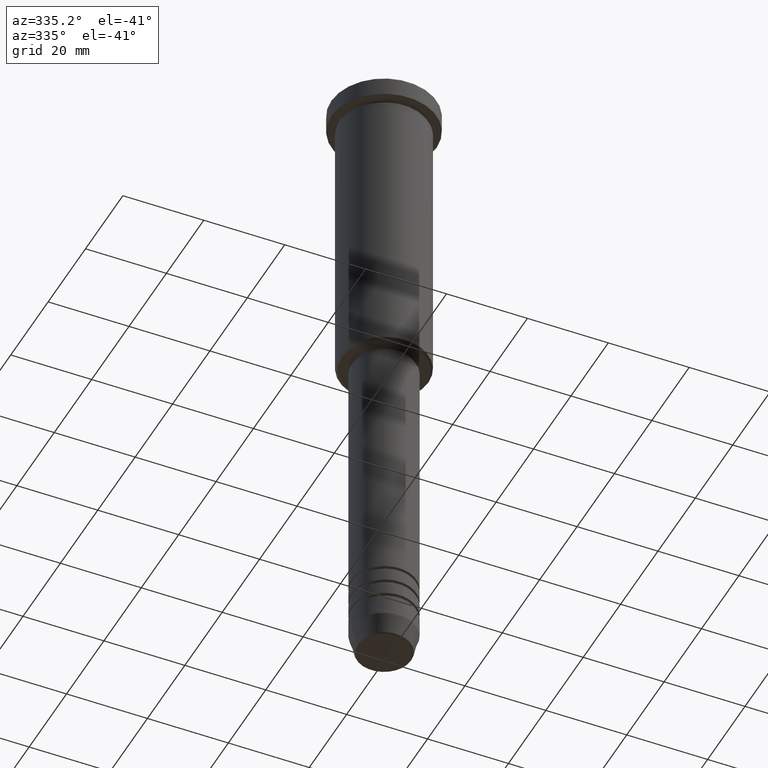
[diagram: clean part render]
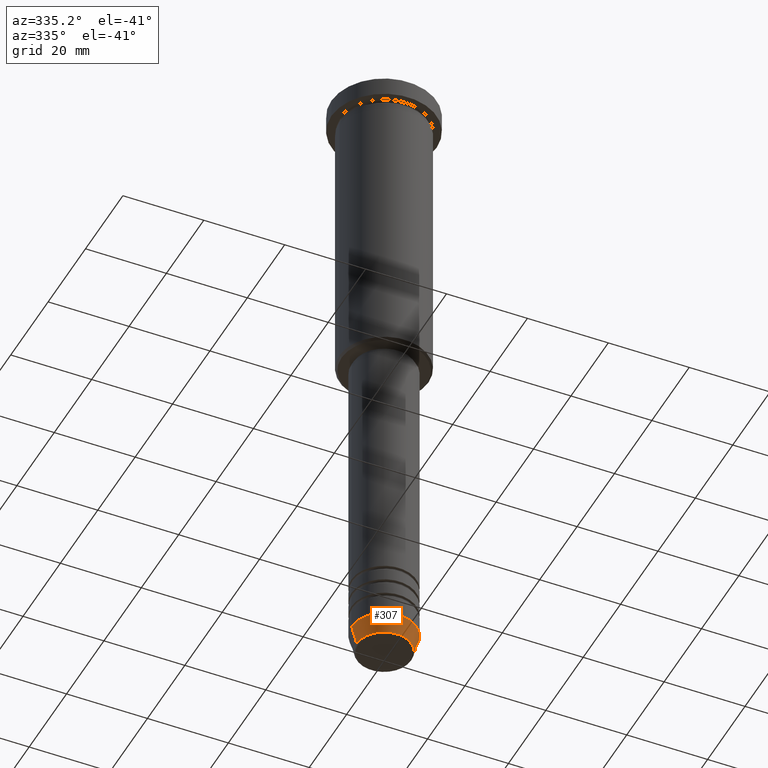
[diagram: same view with one face highlighted and labeled with its STEP entity id]
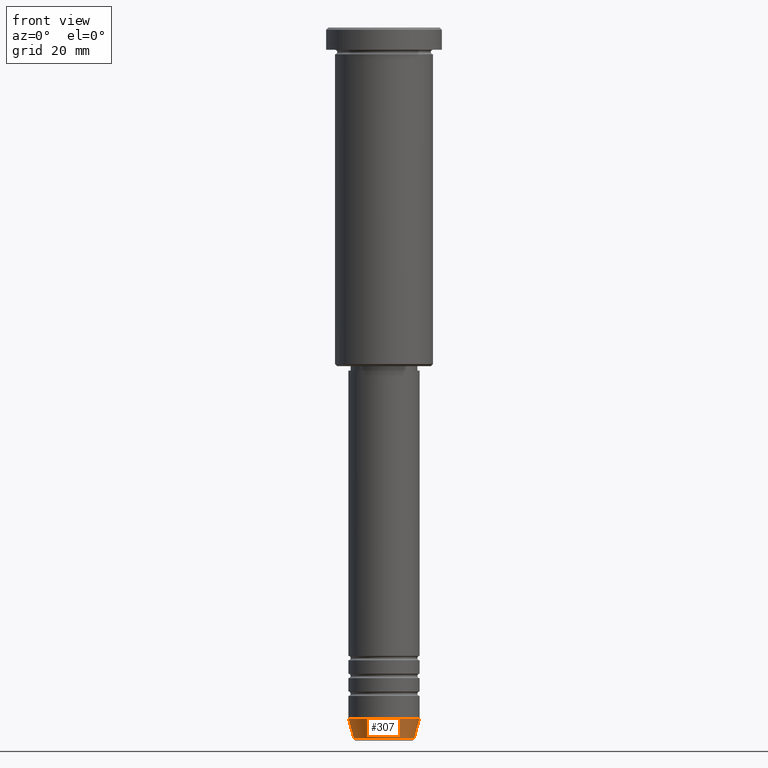
[diagram: same view with one face highlighted and labeled with its STEP entity id]
A machine part, auxiliary view. The second image highlights one B-rep face of the part: STEP entity #307.
A second angle (front view) of the same face is appended — the face is thin or edge-on in the first view.
In plain terms, the highlighted conical surface has half-angle 15 deg.
Its self-contained STEP definition (entity closure, byte-faithful):
#6 = CARTESIAN_POINT ( 'NONE',  ( 0.000000000000000000, 0.000000000000000000, -159.6294095225512706 ) ) ;
#16 = CARTESIAN_POINT ( 'NONE',  ( 8.000000000000000000, 0.000000000000000000, -155.0000000000000000 ) ) ;
#20 = VECTOR ( 'NONE', #888, 999.9999999999998863 ) ;
#25 = EDGE_CURVE ( 'NONE', #358, #1000, #1077, .T. ) ;
#51 = VERTEX_POINT ( 'NONE', #16 ) ;
#66 = AXIS2_PLACEMENT_3D ( 'NONE', #6, #384, #560 ) ;
#87 = CARTESIAN_POINT ( 'NONE',  ( 8.000000000000000000, 0.000000000000000000, -155.0000000000000000 ) ) ;
#101 = AXIS2_PLACEMENT_3D ( 'NONE', #1148, #728, #718 ) ;
#307 = ADVANCED_FACE ( 'NONE', ( #651 ), #1038, .T. ) ;
#310 = DIRECTION ( 'NONE',  ( -0.000000000000000000, -0.000000000000000000, 1.000000000000000000 ) ) ;
#335 = ORIENTED_EDGE ( 'NONE', *, *, #727, .F. ) ;
#358 = VERTEX_POINT ( 'NONE', #690 ) ;
#370 = CARTESIAN_POINT ( 'NONE',  ( -8.000000000000000000, 9.797174393178825657E-16, -155.0000000000000000 ) ) ;
#384 = DIRECTION ( 'NONE',  ( -0.000000000000000000, -0.000000000000000000, 1.000000000000000000 ) ) ;
#392 = CARTESIAN_POINT ( 'NONE',  ( 0.000000000000000000, 0.000000000000000000, -155.0000000000000000 ) ) ;
#431 = VERTEX_POINT ( 'NONE', #1051 ) ;
#449 = ORIENTED_EDGE ( 'NONE', *, *, #958, .T. ) ;
#522 = AXIS2_PLACEMENT_3D ( 'NONE', #392, #310, #551 ) ;
#523 = ORIENTED_EDGE ( 'NONE', *, *, #1042, .F. ) ;
#525 = DIRECTION ( 'NONE',  ( 0.2588190451025202399, 0.000000000000000000, 0.9659258262890684232 ) ) ;
#551 = DIRECTION ( 'NONE',  ( 1.000000000000000000, 0.000000000000000000, 0.000000000000000000 ) ) ;
#560 = DIRECTION ( 'NONE',  ( 1.000000000000000000, 0.000000000000000000, 0.000000000000000000 ) ) ;
#651 = FACE_OUTER_BOUND ( 'NONE', #706, .T. ) ;
#690 = CARTESIAN_POINT ( 'NONE',  ( -6.759553456999439547, 9.037619948979308185E-16, -159.6294095225512706 ) ) ;
#706 = EDGE_LOOP ( 'NONE', ( #335, #988, #449, #523 ) ) ;
#718 = DIRECTION ( 'NONE',  ( 1.000000000000000000, 0.000000000000000000, 0.000000000000000000 ) ) ;
#727 = EDGE_CURVE ( 'NONE', #358, #431, #1179, .T. ) ;
#728 = DIRECTION ( 'NONE',  ( -0.000000000000000000, -0.000000000000000000, 1.000000000000000000 ) ) ;
#888 = DIRECTION ( 'NONE',  ( -0.2588190451025202399, 3.169619151431758162E-17, 0.9659258262890684232 ) ) ;
#907 = LINE ( 'NONE', #87, #1125 ) ;
#958 = EDGE_CURVE ( 'NONE', #1000, #51, #907, .T. ) ;
#988 = ORIENTED_EDGE ( 'NONE', *, *, #25, .T. ) ;
#1000 = VERTEX_POINT ( 'NONE', #1160 ) ;
#1020 = CIRCLE ( 'NONE', #101, 8.000000000000000000 ) ;
#1038 = CONICAL_SURFACE ( 'NONE', #522, 8.000000000000000000, 0.2617993877991488527 ) ;
#1042 = EDGE_CURVE ( 'NONE', #431, #51, #1020, .T. ) ;
#1051 = CARTESIAN_POINT ( 'NONE',  ( -8.000000000000000000, 9.797174393178825657E-16, -155.0000000000000000 ) ) ;
#1077 = CIRCLE ( 'NONE', #66, 6.759553456999438659 ) ;
#1125 = VECTOR ( 'NONE', #525, 999.9999999999998863 ) ;
#1148 = CARTESIAN_POINT ( 'NONE',  ( 0.000000000000000000, 0.000000000000000000, -155.0000000000000000 ) ) ;
#1160 = CARTESIAN_POINT ( 'NONE',  ( 6.759553456999438659, 0.000000000000000000, -159.6294095225512706 ) ) ;
#1179 = LINE ( 'NONE', #370, #20 ) ;